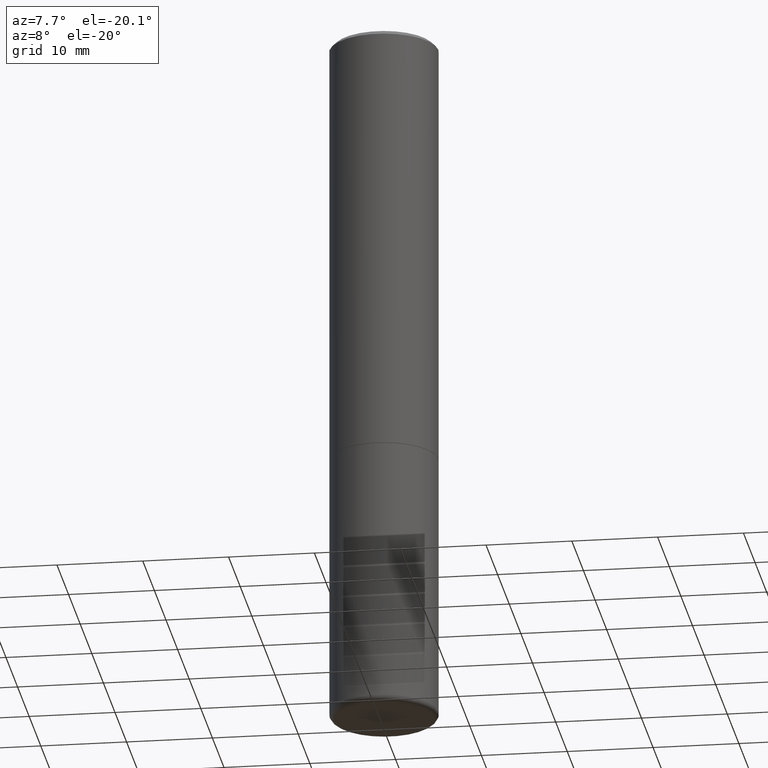
[diagram: clean part render]
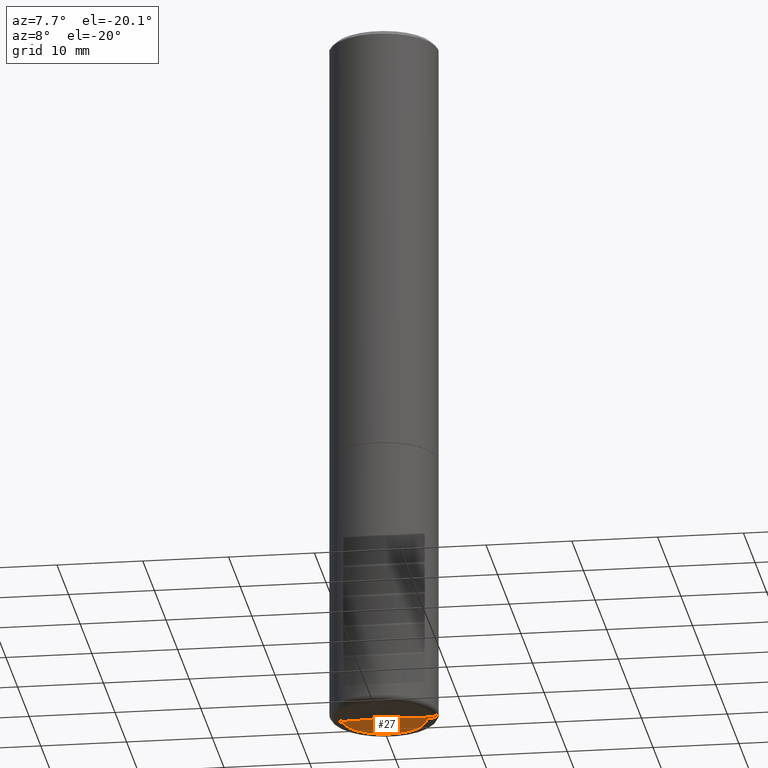
[diagram: same view with one face highlighted and labeled with its STEP entity id]
A machine part, auxiliary view. The second image highlights one B-rep face of the part: STEP entity #27.
In plain terms, the highlighted conical surface has half-angle 88 deg.
Its self-contained STEP definition (entity closure, byte-faithful):
#9 = CARTESIAN_POINT ( 'NONE',  ( 7.929934496680489280E-29, -1.132408133894856808E-14, -3.243025033220710451 ) ) ;
#27 = ADVANCED_FACE ( 'NONE', ( #127 ), #51, .F. ) ;
#34 = AXIS2_PLACEMENT_3D ( 'NONE', #314, #88, #353 ) ;
#44 = DIRECTION ( 'NONE',  ( -0.9993908270190957621, 6.856857904024556470E-15, -0.03489949670250108021 ) ) ;
#45 = VERTEX_POINT ( 'NONE', #9 ) ;
#51 = CONICAL_SURFACE ( 'NONE', #34, 0.1930732039350491758, 1.535889741755009918 ) ;
#61 = DIRECTION ( 'NONE',  ( 0.9993908270190957621, -6.978169709227541488E-15, -0.03489949670250108021 ) ) ;
#81 = LINE ( 'NONE', #387, #475 ) ;
#84 = VECTOR ( 'NONE', #61, 39.37007874015748143 ) ;
#88 = DIRECTION ( 'NONE',  ( 2.445468806185136597E-29, -3.491481338843145583E-15, -1.000000000000000000 ) ) ;
#127 = FACE_OUTER_BOUND ( 'NONE', #239, .T. ) ;
#130 = CIRCLE ( 'NONE', #389, 0.1930732039350491758 ) ;
#131 = CARTESIAN_POINT ( 'NONE',  ( -0.1930732039350491758, -9.998278899655613929E-15, -3.249767298070359800 ) ) ;
#146 = DIRECTION ( 'NONE',  ( -2.445468806185136597E-29, 3.491481338843145583E-15, 1.000000000000000000 ) ) ;
#148 = EDGE_CURVE ( 'NONE', #45, #418, #251, .T. ) ;
#197 = VERTEX_POINT ( 'NONE', #131 ) ;
#200 = CARTESIAN_POINT ( 'NONE',  ( 0.1930732039350491758, -1.267108020581511100E-14, -3.249767298070359800 ) ) ;
#239 = EDGE_LOOP ( 'NONE', ( #296, #378, #347 ) ) ;
#251 = LINE ( 'NONE', #407, #84 ) ;
#254 = EDGE_CURVE ( 'NONE', #418, #197, #130, .T. ) ;
#296 = ORIENTED_EDGE ( 'NONE', *, *, #148, .F. ) ;
#314 = CARTESIAN_POINT ( 'NONE',  ( 7.947204554791619182E-29, -1.134650187679537143E-14, -3.249767298070359800 ) ) ;
#340 = CARTESIAN_POINT ( 'NONE',  ( 7.947204554791619182E-29, -1.134650187679537143E-14, -3.249767298070359800 ) ) ;
#347 = ORIENTED_EDGE ( 'NONE', *, *, #254, .F. ) ;
#353 = DIRECTION ( 'NONE',  ( -1.000000000000000000, 6.982962677686266711E-15, 0.000000000000000000 ) ) ;
#378 = ORIENTED_EDGE ( 'NONE', *, *, #412, .T. ) ;
#387 = CARTESIAN_POINT ( 'NONE',  ( -0.1930732039350491758, -9.998278899655613929E-15, -3.249767298070359800 ) ) ;
#389 = AXIS2_PLACEMENT_3D ( 'NONE', #340, #146, #442 ) ;
#407 = CARTESIAN_POINT ( 'NONE',  ( 0.1930732039350491758, -1.267108020581511100E-14, -3.249767298070359800 ) ) ;
#412 = EDGE_CURVE ( 'NONE', #45, #197, #81, .T. ) ;
#418 = VERTEX_POINT ( 'NONE', #200 ) ;
#442 = DIRECTION ( 'NONE',  ( 1.000000000000000000, -6.982962677686266711E-15, 0.000000000000000000 ) ) ;
#475 = VECTOR ( 'NONE', #44, 39.37007874015748143 ) ;